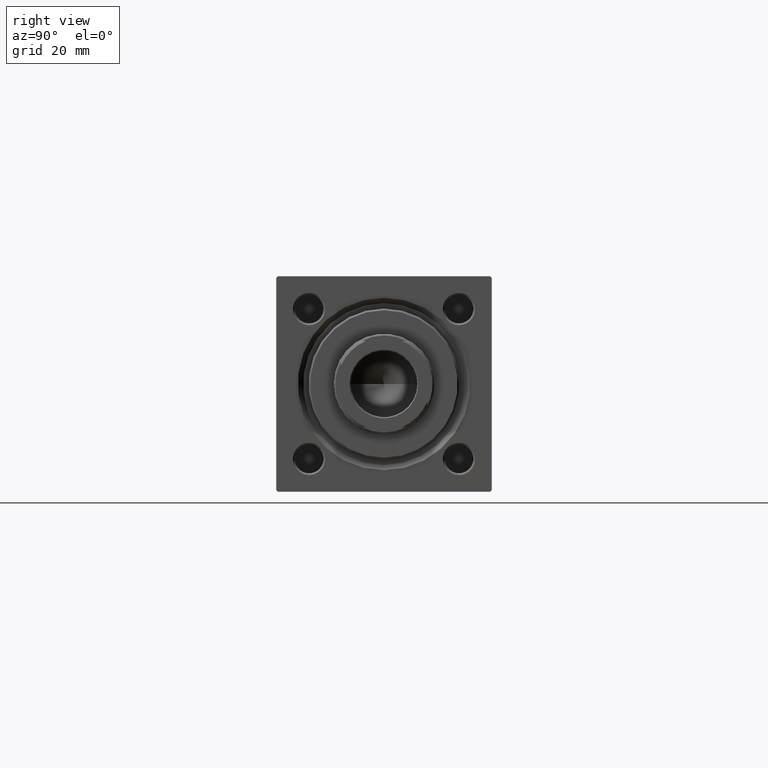
[diagram: clean part render]
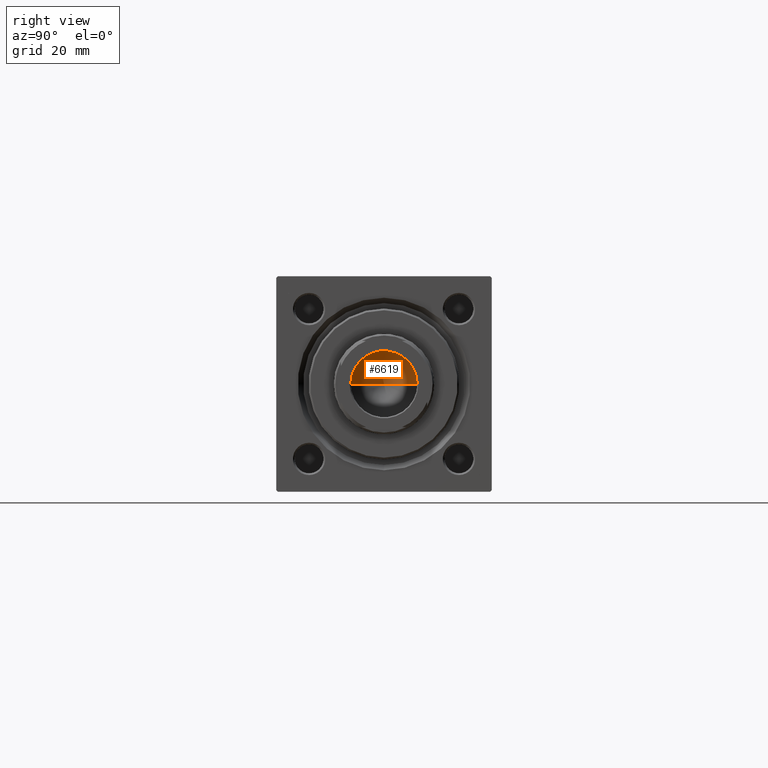
[diagram: same view with one face highlighted and labeled with its STEP entity id]
A machine part, right view. The second image highlights one B-rep face of the part: STEP entity #6619.
In plain terms, the highlighted conical surface has half-angle 59 deg.
Its self-contained STEP definition (entity closure, byte-faithful):
#587 = CARTESIAN_POINT ( 'NONE',  ( -9.769621978240258809E-15, 0.000000000000000000, 95.44203927399506426 ) ) ;
#824 = CARTESIAN_POINT ( 'NONE',  ( 0.000000000000000000, 0.000000000000000000, 101.0000000000000000 ) ) ;
#4164 = CARTESIAN_POINT ( 'NONE',  ( 9.249999999999992895, 0.000000000000000000, 101.0000000000000000 ) ) ;
#4188 = DIRECTION ( 'NONE',  ( 1.000000000000000000, 0.000000000000000000, 0.000000000000000000 ) ) ;
#4640 = DIRECTION ( 'NONE',  ( 1.000000000000000000, 0.000000000000000000, 0.000000000000000000 ) ) ;
#4692 = CARTESIAN_POINT ( 'NONE',  ( 0.000000000000000000, 0.000000000000000000, 101.0000000000000000 ) ) ;
#5045 = ORIENTED_EDGE ( 'NONE', *, *, #7792, .T. ) ;
#5705 = ORIENTED_EDGE ( 'NONE', *, *, #40077, .F. ) ;
#6619 = ADVANCED_FACE ( 'NONE', ( #19660 ), #22907, .F. ) ;
#6753 = VECTOR ( 'NONE', #35344, 1000.000000000000000 ) ;
#7792 = EDGE_CURVE ( 'NONE', #7809, #38561, #19866, .T. ) ;
#7809 = VERTEX_POINT ( 'NONE', #587 ) ;
#11030 = CARTESIAN_POINT ( 'NONE',  ( -9.249999999999992895, 1.132798289211300712E-15, 101.0000000000000000 ) ) ;
#12245 = DIRECTION ( 'NONE',  ( -0.000000000000000000, -0.000000000000000000, 1.000000000000000000 ) ) ;
#15775 = EDGE_CURVE ( 'NONE', #38561, #21637, #49042, .T. ) ;
#19610 = CARTESIAN_POINT ( 'NONE',  ( -9.249999999999992895, 1.132798289211300712E-15, 101.0000000000000000 ) ) ;
#19660 = FACE_OUTER_BOUND ( 'NONE', #33809, .T. ) ;
#19866 = LINE ( 'NONE', #19610, #6753 ) ;
#21637 = VERTEX_POINT ( 'NONE', #41051 ) ;
#22907 = CONICAL_SURFACE ( 'NONE', #25344, 9.249999999999992895, 1.029744258676653423 ) ;
#23528 = ORIENTED_EDGE ( 'NONE', *, *, #15775, .T. ) ;
#25344 = AXIS2_PLACEMENT_3D ( 'NONE', #4692, #39695, #4188 ) ;
#26515 = LINE ( 'NONE', #4164, #36681 ) ;
#28034 = AXIS2_PLACEMENT_3D ( 'NONE', #824, #12245, #4640 ) ;
#33809 = EDGE_LOOP ( 'NONE', ( #5705, #5045, #23528 ) ) ;
#34865 = DIRECTION ( 'NONE',  ( 0.8571673007021117785, 0.000000000000000000, 0.5150380749100550437 ) ) ;
#35344 = DIRECTION ( 'NONE',  ( -0.8571673007021117785, 1.049727191138617956E-16, 0.5150380749100550437 ) ) ;
#36681 = VECTOR ( 'NONE', #34865, 1000.000000000000000 ) ;
#38561 = VERTEX_POINT ( 'NONE', #11030 ) ;
#39695 = DIRECTION ( 'NONE',  ( -0.000000000000000000, -0.000000000000000000, 1.000000000000000000 ) ) ;
#40077 = EDGE_CURVE ( 'NONE', #7809, #21637, #26515, .T. ) ;
#41051 = CARTESIAN_POINT ( 'NONE',  ( 9.249999999999992895, 0.000000000000000000, 101.0000000000000000 ) ) ;
#49042 = CIRCLE ( 'NONE', #28034, 9.249999999999992895 ) ;